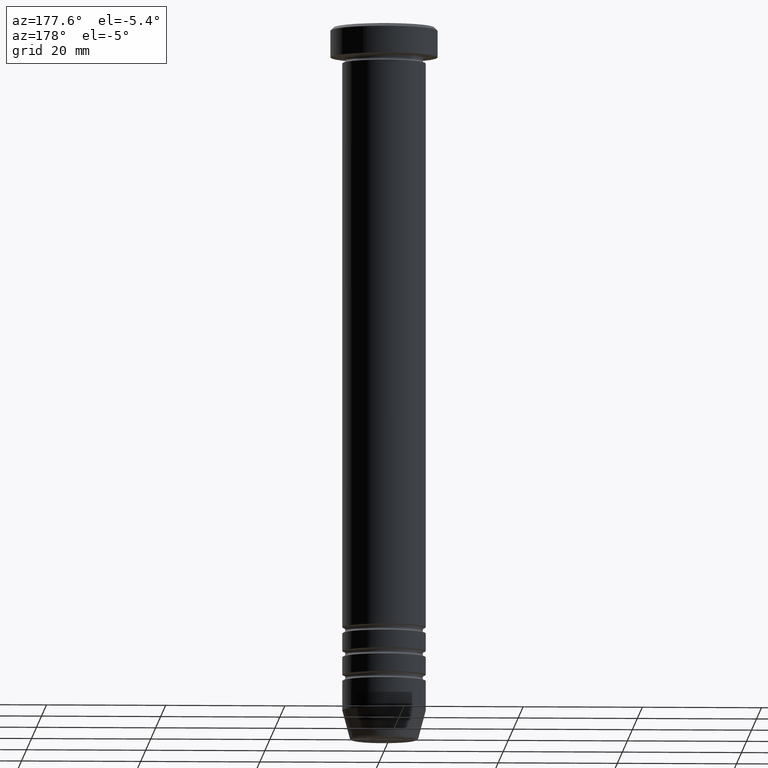
[diagram: clean part render]
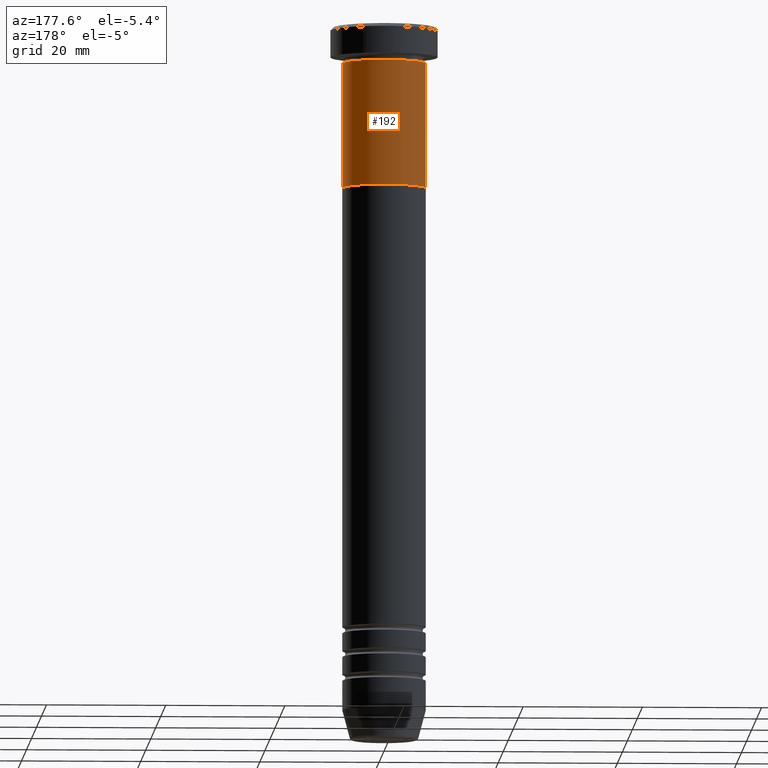
[diagram: same view with one face highlighted and labeled with its STEP entity id]
A machine part, auxiliary view. The second image highlights one B-rep face of the part: STEP entity #192.
In plain terms, the highlighted cylindrical surface (partial cylindrical patch) has radius 7 mm, axis along (-0, -0, 1).
Its self-contained STEP definition (entity closure, byte-faithful):
#20 = CYLINDRICAL_SURFACE ( 'NONE', #357, 7.000000000000000000 ) ;
#32 = EDGE_CURVE ( 'NONE', #176, #825, #430, .T. ) ;
#37 = DIRECTION ( 'NONE',  ( 1.000000000000000000, 0.000000000000000000, 0.000000000000000000 ) ) ;
#69 = VERTEX_POINT ( 'NONE', #853 ) ;
#117 = DIRECTION ( 'NONE',  ( -0.000000000000000000, -0.000000000000000000, 1.000000000000000000 ) ) ;
#119 = DIRECTION ( 'NONE',  ( -0.000000000000000000, -0.000000000000000000, 1.000000000000000000 ) ) ;
#176 = VERTEX_POINT ( 'NONE', #342 ) ;
#192 = ADVANCED_FACE ( 'NONE', ( #683 ), #20, .T. ) ;
#207 = CARTESIAN_POINT ( 'NONE',  ( -7.000000000000000000, 8.572527594031473190E-16, 0.000000000000000000 ) ) ;
#210 = CARTESIAN_POINT ( 'NONE',  ( 7.000000000000000000, 0.000000000000000000, 0.000000000000000000 ) ) ;
#219 = LINE ( 'NONE', #210, #637 ) ;
#333 = ORIENTED_EDGE ( 'NONE', *, *, #32, .T. ) ;
#342 = CARTESIAN_POINT ( 'NONE',  ( -7.000000000000000000, 8.572527594031473190E-16, -27.00000000000000000 ) ) ;
#345 = EDGE_CURVE ( 'NONE', #69, #747, #219, .T. ) ;
#357 = AXIS2_PLACEMENT_3D ( 'NONE', #494, #847, #992 ) ;
#371 = VECTOR ( 'NONE', #768, 1000.000000000000000 ) ;
#385 = AXIS2_PLACEMENT_3D ( 'NONE', #773, #119, #37 ) ;
#406 = ORIENTED_EDGE ( 'NONE', *, *, #345, .F. ) ;
#420 = EDGE_CURVE ( 'NONE', #69, #176, #764, .T. ) ;
#430 = LINE ( 'NONE', #207, #371 ) ;
#494 = CARTESIAN_POINT ( 'NONE',  ( 0.000000000000000000, 0.000000000000000000, 0.000000000000000000 ) ) ;
#510 = DIRECTION ( 'NONE',  ( 1.000000000000000000, 0.000000000000000000, 0.000000000000000000 ) ) ;
#606 = CARTESIAN_POINT ( 'NONE',  ( 7.000000000000000000, 0.000000000000000000, -6.000000000000001776 ) ) ;
#637 = VECTOR ( 'NONE', #1030, 1000.000000000000000 ) ;
#683 = FACE_OUTER_BOUND ( 'NONE', #956, .T. ) ;
#692 = EDGE_CURVE ( 'NONE', #747, #825, #980, .T. ) ;
#747 = VERTEX_POINT ( 'NONE', #606 ) ;
#764 = CIRCLE ( 'NONE', #385, 7.000000000000000000 ) ;
#768 = DIRECTION ( 'NONE',  ( -0.000000000000000000, -0.000000000000000000, 1.000000000000000000 ) ) ;
#773 = CARTESIAN_POINT ( 'NONE',  ( 0.000000000000000000, 0.000000000000000000, -27.00000000000000000 ) ) ;
#825 = VERTEX_POINT ( 'NONE', #952 ) ;
#847 = DIRECTION ( 'NONE',  ( -0.000000000000000000, -0.000000000000000000, 1.000000000000000000 ) ) ;
#849 = CARTESIAN_POINT ( 'NONE',  ( 0.000000000000000000, 0.000000000000000000, -6.000000000000001776 ) ) ;
#853 = CARTESIAN_POINT ( 'NONE',  ( 7.000000000000000000, 0.000000000000000000, -27.00000000000000000 ) ) ;
#870 = ORIENTED_EDGE ( 'NONE', *, *, #420, .T. ) ;
#952 = CARTESIAN_POINT ( 'NONE',  ( -7.000000000000000000, 8.572527594031473190E-16, -6.000000000000001776 ) ) ;
#956 = EDGE_LOOP ( 'NONE', ( #870, #333, #994, #406 ) ) ;
#980 = CIRCLE ( 'NONE', #1037, 7.000000000000000000 ) ;
#992 = DIRECTION ( 'NONE',  ( 1.000000000000000000, 0.000000000000000000, 0.000000000000000000 ) ) ;
#994 = ORIENTED_EDGE ( 'NONE', *, *, #692, .F. ) ;
#1030 = DIRECTION ( 'NONE',  ( -0.000000000000000000, -0.000000000000000000, 1.000000000000000000 ) ) ;
#1037 = AXIS2_PLACEMENT_3D ( 'NONE', #849, #117, #510 ) ;